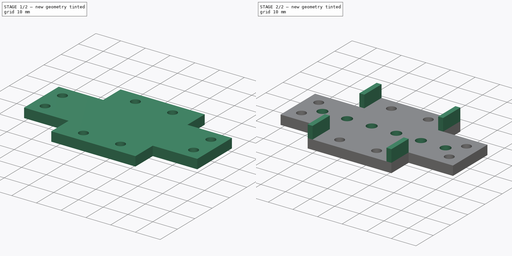
[diagram: build sequence overview — one tinted view per stage of 2, left to right]
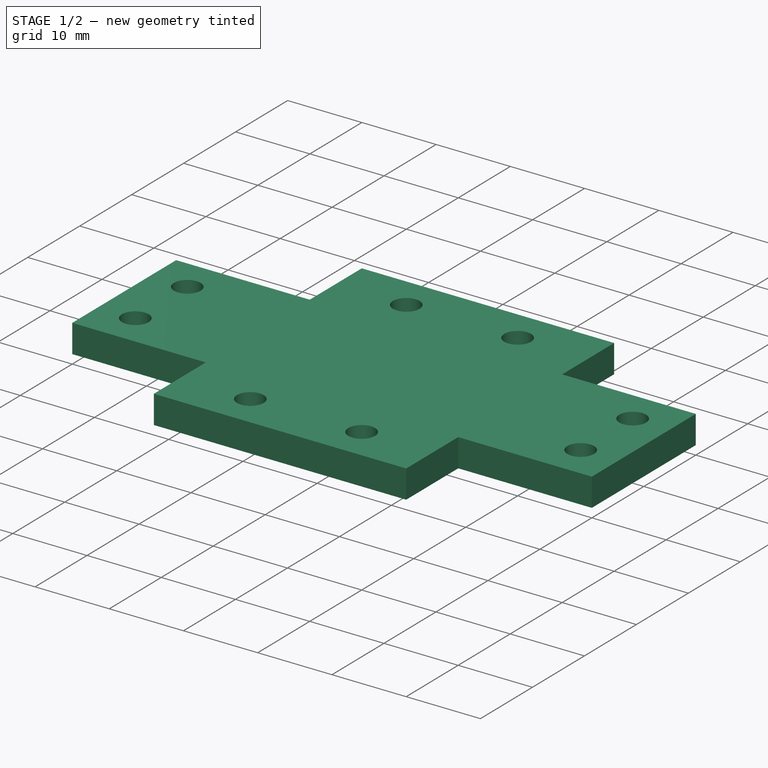
[diagram: stage 1 of 2 — iso view after this stage's code; geometry added in this stage tinted green]
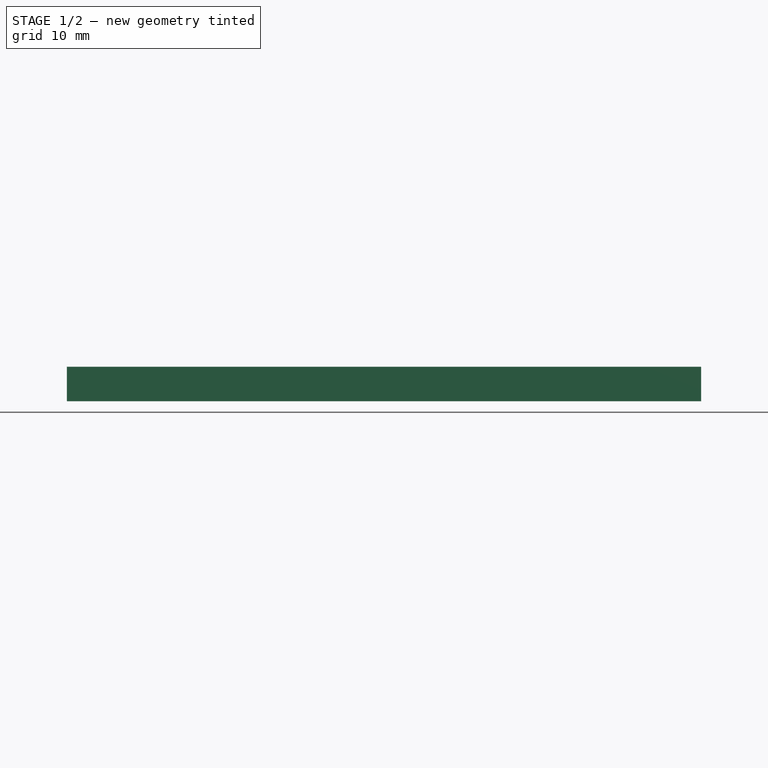
[diagram: stage 1 of 2 — front view after this stage's code; geometry added in this stage tinted green]
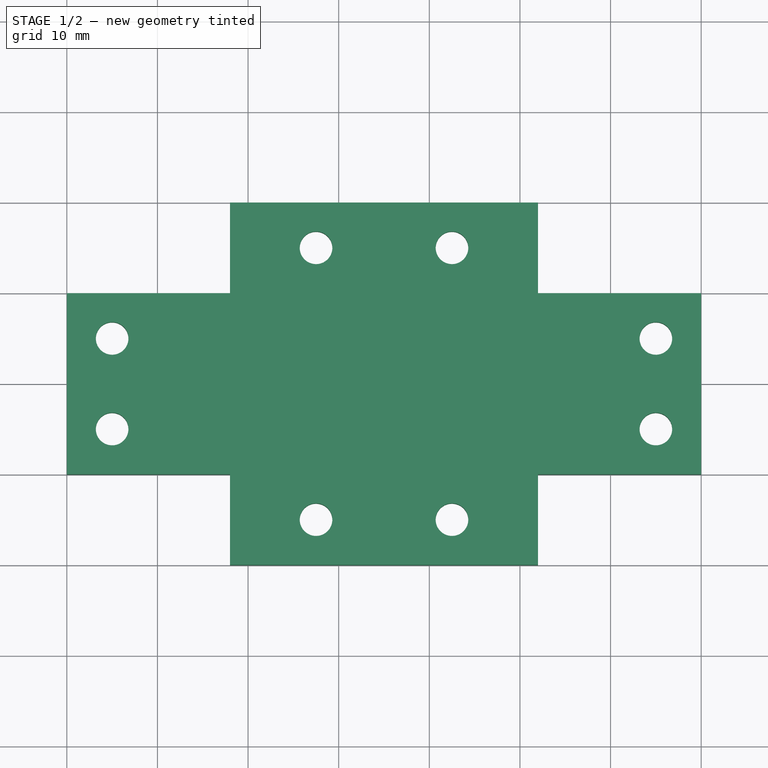
[diagram: stage 1 of 2 — top view after this stage's code; geometry added in this stage tinted green]
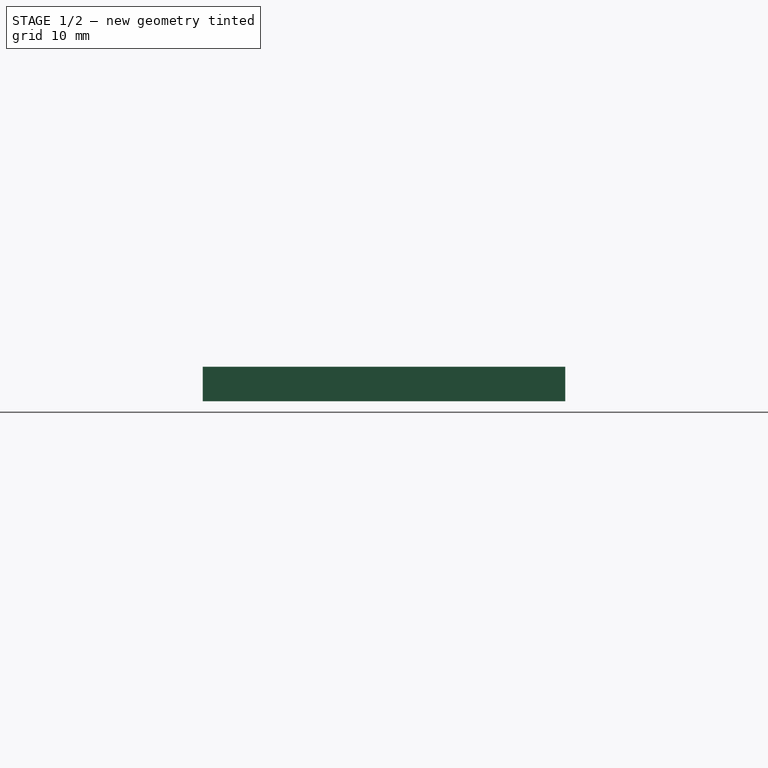
[diagram: stage 1 of 2 — right view after this stage's code; geometry added in this stage tinted green]
FCSTD DOCUMENT
Label: DeltaArmJig1515Mount
objects: Sketcher::SketchObject×4, PartDesign::Pad×2, PartDesign::Pocket×2
note: 10 computed .brp shape members not serialized (recipe doc carries the construction recipe); baked Part::Feature solids carry a one-line shape summary decoded from their .brp

FEATURE [Sketcher::SketchObject] Sketch
  sketch-geometry (26):
    g0: LineSegment StartX=0 StartY=0 StartZ=0 EndX=0 EndY=20 EndZ=0
    g1: LineSegment StartX=0 StartY=20 StartZ=0 EndX=18 EndY=20 EndZ=0
    g2: LineSegment StartX=18 StartY=20 StartZ=0 EndX=18 EndY=30 EndZ=0
    g3: LineSegment StartX=18 StartY=30 StartZ=0 EndX=52 EndY=30 EndZ=0
    g4: LineSegment StartX=52 StartY=30 StartZ=0 EndX=52 EndY=20 EndZ=0
    g5: LineSegment StartX=52 StartY=20 StartZ=0 EndX=70 EndY=20 EndZ=0
    g6: LineSegment StartX=70 StartY=20 StartZ=0 EndX=70 EndY=0 EndZ=0
    g7: LineSegment StartX=70 StartY=0 StartZ=0 EndX=52 EndY=0 EndZ=0
    g8: LineSegment StartX=52 StartY=0 StartZ=0 EndX=52 EndY=-10 EndZ=0
    g9: LineSegment StartX=52 StartY=-10 StartZ=0 EndX=18 EndY=-10 EndZ=0
    g10: LineSegment StartX=18 StartY=-10 StartZ=0 EndX=18 EndY=0 EndZ=0
    g11: LineSegment StartX=18 StartY=0 StartZ=0 EndX=0 EndY=0 EndZ=0
    g12: LineSegment [constr] StartX=18 StartY=20 StartZ=0 EndX=52 EndY=20 EndZ=0
    g13: LineSegment [constr] StartX=52 StartY=20 StartZ=0 EndX=52 EndY=0 EndZ=0
    g14: LineSegment [constr] StartX=52 StartY=0 StartZ=0 EndX=18 EndY=0 EndZ=0
    g15: LineSegment [constr] StartX=18 StartY=0 StartZ=0 EndX=18 EndY=20 EndZ=0
    g16: Circle CenterX=27.5 CenterY=25 CenterZ=0 NormalX=0 NormalY=0 NormalZ=1 Radius=1.8
    g17: Circle CenterX=42.5 CenterY=25 CenterZ=0 NormalX=0 NormalY=0 NormalZ=1 Radius=1.8
    g18: Circle CenterX=27.5 CenterY=-5 CenterZ=0 NormalX=0 NormalY=0 NormalZ=1 Radius=1.8
    g19: Circle CenterX=42.5 CenterY=-5 CenterZ=0 NormalX=0 NormalY=0 NormalZ=1 Radius=1.8
    g20: LineSegment [constr] StartX=27.5 StartY=25 StartZ=0 EndX=42.5 EndY=25 EndZ=0
    g21: LineSegment [constr] StartX=42.5 StartY=25 StartZ=0 EndX=42.5 EndY=-5 EndZ=0
    g22: LineSegment [constr] StartX=42.5 StartY=-5 StartZ=0 EndX=27.5 EndY=-5 EndZ=0
    g23: LineSegment [constr] StartX=27.5 StartY=-5 StartZ=0 EndX=27.5 EndY=25 EndZ=0
    g24: LineSegment [constr] StartX=42.5 StartY=25 StartZ=0 EndX=52 EndY=25 EndZ=0
    g25: LineSegment [constr] StartX=27.5 StartY=25 StartZ=0 EndX=18 EndY=25 EndZ=0
  constraints (70):
    c: Vertical(g0)
    c: Coincident(g0,g1)
    c: Horizontal(g1)
    c: Coincident(g1,g2)
    c: Vertical(g2)
    c: Coincident(g2,g3)
    c: Horizontal(g3)
    c: Coincident(g3,g4)
    c: Vertical(g4)
    c: Coincident(g4,g5)
    c: Horizontal(g5)
    c: Coincident(g5,g6)
    c: Vertical(g6)
    c: Coincident(g6,g7)
    c: Horizontal(g7)
    c: Coincident(g7,g8)
    c: Vertical(g8)
    c: Coincident(g8,g9)
    c: Horizontal(g9)
    c: Coincident(g9,g10)
    c: Vertical(g10)
    c: Coincident(g10,g11)
    c: Coincident(g11,g0)
    c: Horizontal(g11)
    c: Coincident(g12,g13)
    c: Coincident(g13,g14)
    c: Coincident(g14,g15)
    c: Coincident(g15,g12)
    c: Horizontal(g12)
    c: Horizontal(g14)
    c: Vertical(g13)
    c: Vertical(g15)
    c: Coincident(g12,g1)
    c: Coincident(g13,g7)
    c: Coincident(g12,g4)
    c: Coincident(g10,g14)
    c: Equal(g5,g1)
    c: Equal(g4,g8)
    c: DistanceX(g0) = 0
    c: DistanceY(g0) = 0
    c: DistanceX(g2,g3) = 34
    c: Coincident(g20,g21)
    c: Coincident(g21,g22)
    c: Coincident(g22,g23)
    c: Coincident(g23,g20)
    c: Horizontal(g20)
    c: Horizontal(g22)
    c: Vertical(g21)
    c: Vertical(g23)
    c: Coincident(g20,g16)
    c: Coincident(g21,g19)
    c: Coincident(g22,g18)
    c: Coincident(g17,g20)
    c: Coincident(g24,g17)
    c: PointOnObject(g24,g4)
    c: Horizontal(g24)
    c: Coincident(g25,g16)
    c: PointOnObject(g25,g2)
    c: Horizontal(g25)
    c: Equal(g24,g25)
    c: DistanceX(g16,g17) = 15
    c: Equal(g19,g17)
    c: Equal(g17,g16)
    c: Equal(g16,g18)
    c: Radius(g16) = 1.8
    c: DistanceY(g0,g0) = 20
    c: DistanceY(g2,g1) = -10
    c: DistanceY(g25,g2) = 5
    c: DistanceY(g18,g9) = -5
    c: DistanceX(g0,g5) = 70
FEATURE [PartDesign::Pad] Pad
  Length = 3.8
  MirroredExtent = false
  Sketch = -> Sketch
FEATURE [Sketcher::SketchObject] Sketch001
  Placement = pos=(0,0,3.8) rot=(0,0,1;0rad)
  Support = -> Pad [Face18]
  sketch-geometry (8):
    g0: LineSegment [constr] StartX=5 StartY=15 StartZ=0 EndX=65 EndY=15 EndZ=0
    g1: LineSegment [constr] StartX=65 StartY=15 StartZ=0 EndX=65 EndY=5 EndZ=0
    g2: LineSegment [constr] StartX=65 StartY=5 StartZ=0 EndX=5 EndY=5 EndZ=0
    g3: LineSegment [constr] StartX=5 StartY=5 StartZ=0 EndX=5 EndY=15 EndZ=0
    g4: Circle CenterX=5 CenterY=15 CenterZ=0 NormalX=0 NormalY=0 NormalZ=1 Radius=1.8
    g5: Circle CenterX=65 CenterY=15 CenterZ=0 NormalX=0 NormalY=0 NormalZ=1 Radius=1.8
    g6: Circle CenterX=65 CenterY=5 CenterZ=0 NormalX=0 NormalY=0 NormalZ=1 Radius=1.8
    g7: Circle CenterX=5 CenterY=5 CenterZ=0 NormalX=0 NormalY=0 NormalZ=1 Radius=1.8
  constraints (20):
    c: Coincident(g0,g1)
    c: Coincident(g1,g2)
    c: Coincident(g2,g3)
    c: Coincident(g3,g0)
    c: Horizontal(g0)
    c: Horizontal(g2)
    c: Vertical(g1)
    c: Vertical(g3)
    c: DistanceX(g2) = 5
    c: DistanceY(g2) = 5
    c: DistanceX(g2,g1) = 60
    c: DistanceY(g0,g2) = -10
    c: Coincident(g4,g0)
    c: Coincident(g5,g0)
    c: Coincident(g6,g1)
    c: Coincident(g7,g2)
    c: Equal(g7,g4)
    c: Equal(g4,g5)
    c: Equal(g5,g6)
    c: Radius(g4) = 1.8
FEATURE [PartDesign::Pocket] Pocket
  Length = 5
  Sketch = -> Sketch001
  Type = 0
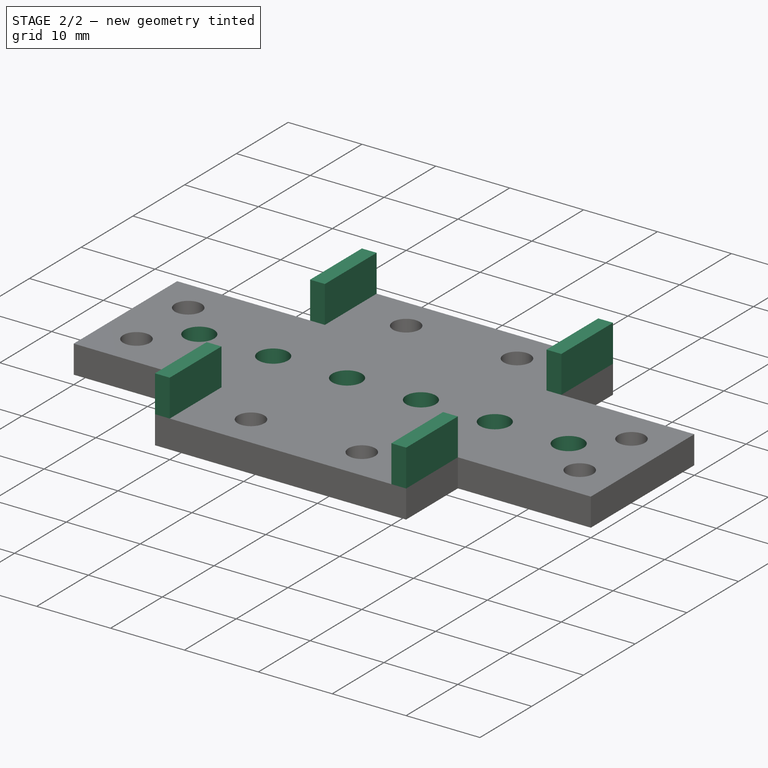
[diagram: stage 2 of 2 — iso view after this stage's code; geometry added in this stage tinted green]
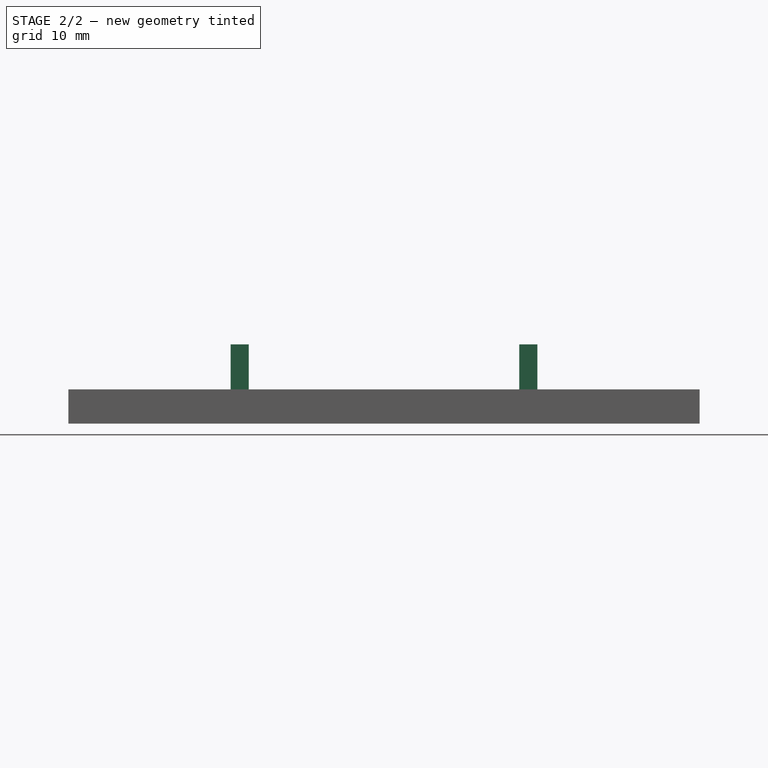
[diagram: stage 2 of 2 — front view after this stage's code; geometry added in this stage tinted green]
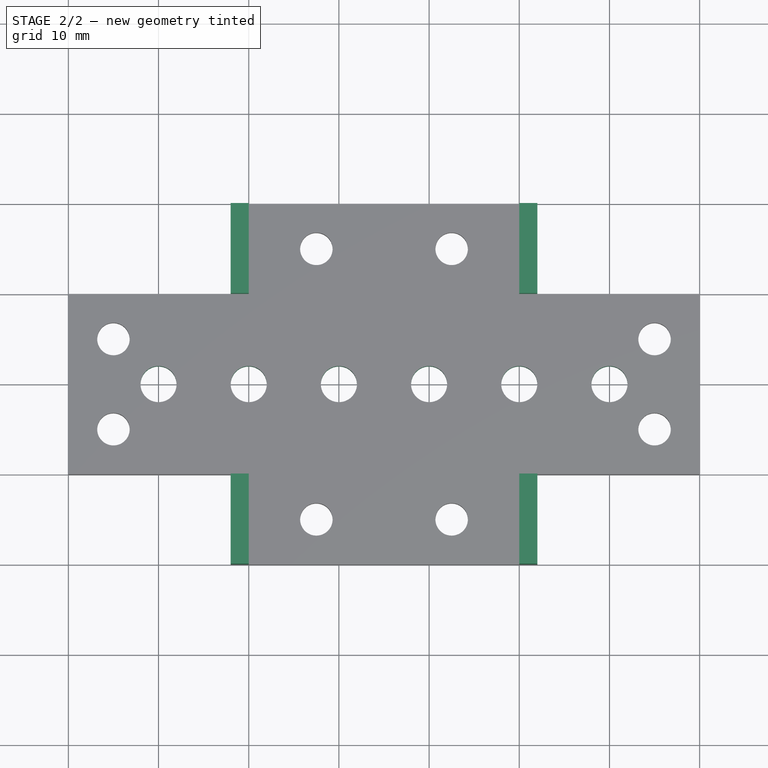
[diagram: stage 2 of 2 — top view after this stage's code; geometry added in this stage tinted green]
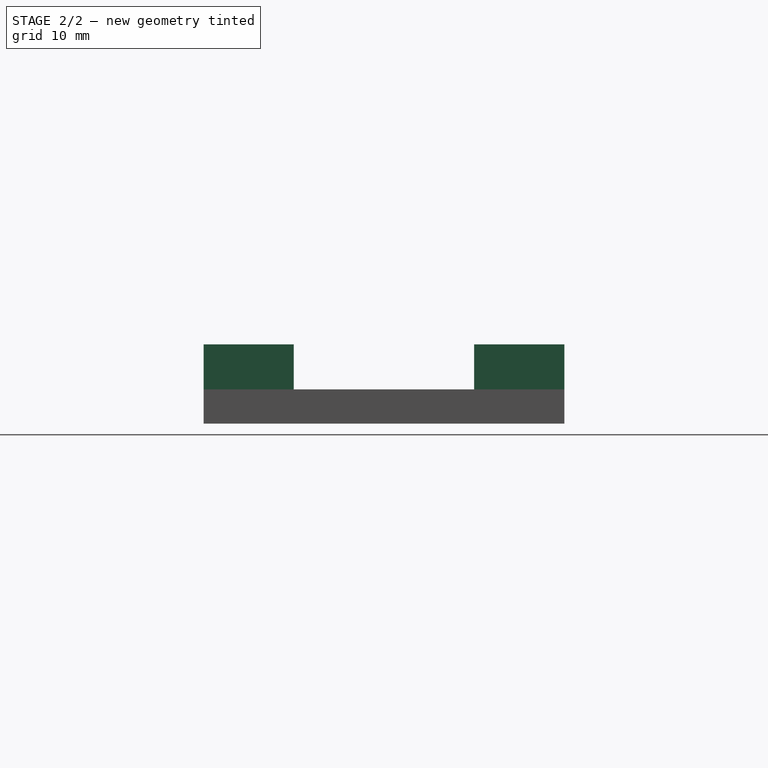
[diagram: stage 2 of 2 — right view after this stage's code; geometry added in this stage tinted green]
FEATURE [Sketcher::SketchObject] Sketch002
  Placement = pos=(0,0,3.8) rot=(0,0,1;0rad)
  Support = -> Pocket [Face5]
  sketch-geometry (26):
    g0: LineSegment StartX=20 StartY=20 StartZ=0 EndX=18 EndY=20 EndZ=0
    g1: LineSegment StartX=18 StartY=20 StartZ=0 EndX=18 EndY=30 EndZ=0
    g2: LineSegment StartX=18 StartY=30 StartZ=0 EndX=20 EndY=30 EndZ=0
    g3: LineSegment StartX=20 StartY=30 StartZ=0 EndX=20 EndY=20 EndZ=0
    g4: LineSegment StartX=50 StartY=20 StartZ=0 EndX=52 EndY=20 EndZ=0
    g5: LineSegment StartX=52 StartY=20 StartZ=0 EndX=52 EndY=30 EndZ=0
    g6: LineSegment StartX=52 StartY=30 StartZ=0 EndX=50 EndY=30 EndZ=0
    g7: LineSegment StartX=50 StartY=30 StartZ=0 EndX=50 EndY=20 EndZ=0
    g8: LineSegment StartX=50 StartY=0 StartZ=0 EndX=52 EndY=0 EndZ=0
    g9: LineSegment StartX=52 StartY=0 StartZ=0 EndX=52 EndY=-10 EndZ=0
    g10: LineSegment StartX=52 StartY=-10 StartZ=0 EndX=50 EndY=-10 EndZ=0
    g11: LineSegment StartX=50 StartY=-10 StartZ=0 EndX=50 EndY=0 EndZ=0
    g12: LineSegment StartX=20 StartY=0 StartZ=0 EndX=18 EndY=0 EndZ=0
    g13: LineSegment StartX=18 StartY=0 StartZ=0 EndX=18 EndY=-10 EndZ=0
    g14: LineSegment StartX=18 StartY=-10 StartZ=0 EndX=20 EndY=-10 EndZ=0
    g15: LineSegment StartX=20 StartY=-10 StartZ=0 EndX=20 EndY=0 EndZ=0
    g16: LineSegment [constr] StartX=20 StartY=20 StartZ=0 EndX=50 EndY=20 EndZ=0
    g17: LineSegment [constr] StartX=50 StartY=20 StartZ=0 EndX=50 EndY=0 EndZ=0
    g18: LineSegment [constr] StartX=50 StartY=0 StartZ=0 EndX=20 EndY=0 EndZ=0
    g19: LineSegment [constr] StartX=20 StartY=0 StartZ=0 EndX=20 EndY=20 EndZ=0
    g20: LineSegment [constr] StartX=20 StartY=30 StartZ=0 EndX=50 EndY=30 EndZ=0
    g21: LineSegment [constr] StartX=52 StartY=20 StartZ=0 EndX=52 EndY=0 EndZ=0
    g22: LineSegment [constr] StartX=18 StartY=20 StartZ=0 EndX=18 EndY=0 EndZ=0
    g23: LineSegment [constr] StartX=20 StartY=-10 StartZ=0 EndX=50 EndY=-10 EndZ=0
    g24: LineSegment [constr] StartX=18 StartY=20 StartZ=0 EndX=0 EndY=20 EndZ=0
    g25: LineSegment [constr] StartX=52 StartY=20 StartZ=0 EndX=70 EndY=20 EndZ=0
  constraints (70):
    c: Coincident(g0,g1)
    c: Coincident(g1,g2)
    c: Coincident(g2,g3)
    c: Coincident(g3,g0)
    c: Horizontal(g0)
    c: Horizontal(g2)
    c: Vertical(g1)
    c: Vertical(g3)
    c: Coincident(g4,g5)
    c: Coincident(g5,g6)
    c: Coincident(g6,g7)
    c: Coincident(g7,g4)
    c: Horizontal(g4)
    c: Horizontal(g6)
    c: Vertical(g5)
    c: Vertical(g7)
    c: Coincident(g8,g9)
    c: Coincident(g9,g10)
    c: Coincident(g10,g11)
    c: Coincident(g11,g8)
    c: Horizontal(g8)
    c: Horizontal(g10)
    c: Vertical(g9)
    c: Vertical(g11)
    c: Coincident(g12,g13)
    c: Coincident(g13,g14)
    c: Coincident(g14,g15)
    c: Coincident(g15,g12)
    c: Horizontal(g12)
    c: Horizontal(g14)
    c: Vertical(g13)
    c: Vertical(g15)
    c: Coincident(g16,g17)
    c: Coincident(g17,g18)
    c: Coincident(g18,g19)
    c: Coincident(g19,g16)
    c: Horizontal(g16)
    c: Horizontal(g18)
    c: Vertical(g17)
    c: Vertical(g19)
    c: Coincident(g16,g0)
    c: Coincident(g17,g8)
    c: Coincident(g16,g4)
    c: Coincident(g12,g18)
    c: Coincident(g20,g2)
    c: Coincident(g20,g6)
    c: Horizontal(g20)
    c: Coincident(g21,g4)
    c: Coincident(g21,g8)
    c: Vertical(g21)
    c: Coincident(g22,g0)
    c: Coincident(g22,g12)
    c: Vertical(g22)
    c: Coincident(g23,g14)
    c: Coincident(g23,g10)
    c: Horizontal(g23)
    c: DistanceY(g1,g13) = -40
    c: DistanceY(g0,g12) = -20
    c: Equal(g1,g13)
    c: DistanceX(g1,g5) = 34
    c: DistanceX(g2,g6) = 30
    c: DistanceY(g12) = 0
    c: Equal(g2,g6)
    c: Coincident(g24,g0)
    c: Horizontal(g24)
    c: Coincident(g25,g4)
    c: Horizontal(g25)
    c: Equal(g25,g24)
    c: DistanceX(g25,g24) = -70
    c: DistanceX(g24) = 0
FEATURE [PartDesign::Pad] Pad001
  Length = 5
  MirroredExtent = false
  Sketch = -> Sketch002
FEATURE [Sketcher::SketchObject] Sketch003
  Placement = pos=(0,0,3.8) rot=(0,0,1;0rad)
  Support = -> Pad001 [Face5]
  sketch-geometry (13):
    g0: LineSegment [constr] StartX=0 StartY=10 StartZ=0 EndX=10 EndY=10 EndZ=0
    g1: LineSegment [constr] StartX=10 StartY=10 StartZ=0 EndX=20 EndY=10 EndZ=0
    g2: LineSegment [constr] StartX=20 StartY=10 StartZ=0 EndX=30 EndY=10 EndZ=0
    g3: LineSegment [constr] StartX=30 StartY=10 StartZ=0 EndX=40 EndY=10 EndZ=0
    g4: LineSegment [constr] StartX=40 StartY=10 StartZ=0 EndX=50 EndY=10 EndZ=0
    g5: LineSegment [constr] StartX=50 StartY=10 StartZ=0 EndX=60 EndY=10 EndZ=0
    g6: LineSegment [constr] StartX=60 StartY=10 StartZ=0 EndX=70 EndY=10 EndZ=0
    g7: Circle CenterX=10 CenterY=10 CenterZ=0 NormalX=0 NormalY=0 NormalZ=1 Radius=2
    g8: Circle CenterX=20 CenterY=10 CenterZ=0 NormalX=0 NormalY=0 NormalZ=1 Radius=2
    g9: Circle CenterX=30 CenterY=10 CenterZ=0 NormalX=0 NormalY=0 NormalZ=1 Radius=2
    g10: Circle CenterX=40 CenterY=10 CenterZ=0 NormalX=0 NormalY=0 NormalZ=1 Radius=2
    g11: Circle CenterX=50 CenterY=10 CenterZ=0 NormalX=0 NormalY=0 NormalZ=1 Radius=2
    g12: Circle CenterX=60 CenterY=10 CenterZ=0 NormalX=0 NormalY=0 NormalZ=1 Radius=2
  constraints (34):
    c: Horizontal(g0)
    c: Coincident(g0,g1)
    c: Horizontal(g1)
    c: Coincident(g1,g2)
    c: Horizontal(g2)
    c: Coincident(g2,g3)
    c: Horizontal(g3)
    c: Coincident(g3,g4)
    c: Horizontal(g4)
    c: Coincident(g4,g5)
    c: Horizontal(g5)
    c: Coincident(g5,g6)
    c: Horizontal(g6)
    c: Equal(g0,g1)
    c: Equal(g1,g2)
    c: Equal(g2,g3)
    c: Equal(g3,g4)
    c: Equal(g4,g5)
    c: Equal(g5,g6)
    c: DistanceX(g0,g6) = 70
    c: DistanceX(g0) = 0
    c: DistanceY(g0) = 10
    c: Coincident(g7,g0)
    c: Coincident(g8,g1)
    c: Coincident(g9,g2)
    c: Coincident(g10,g3)
    c: Coincident(g11,g4)
    c: Coincident(g12,g5)
    c: Equal(g12,g11)
    c: Equal(g11,g10)
    c: Equal(g10,g9)
    c: Equal(g9,g8)
    c: Equal(g8,g7)
    c: Radius(g7) = 2
FEATURE [PartDesign::Pocket] Pocket001
  Length = 5
  Sketch = -> Sketch003
  Type = 0
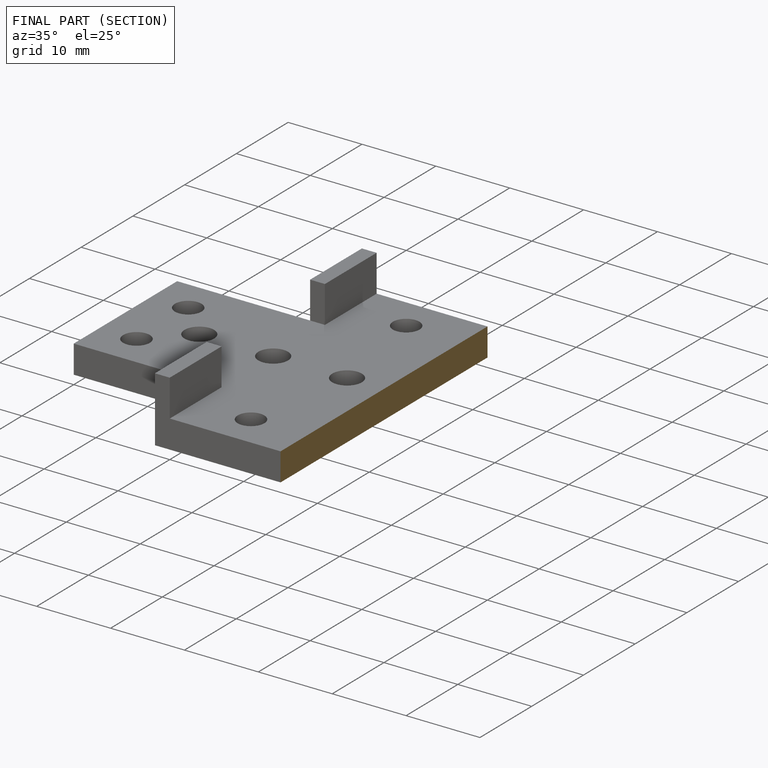
[diagram: finished part — half-section view (interior)]
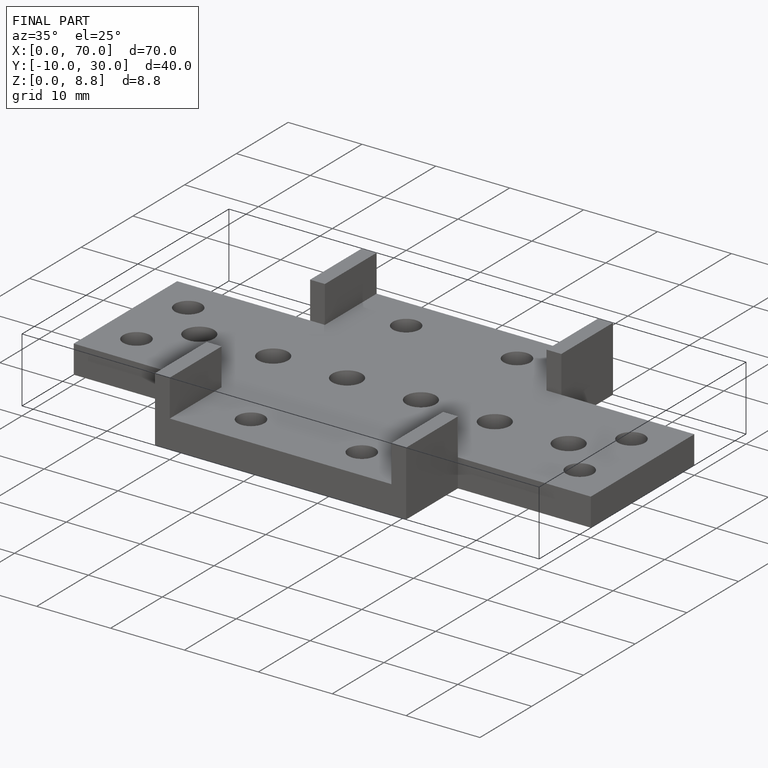
[diagram: finished part — iso view with bounding-box wireframe]
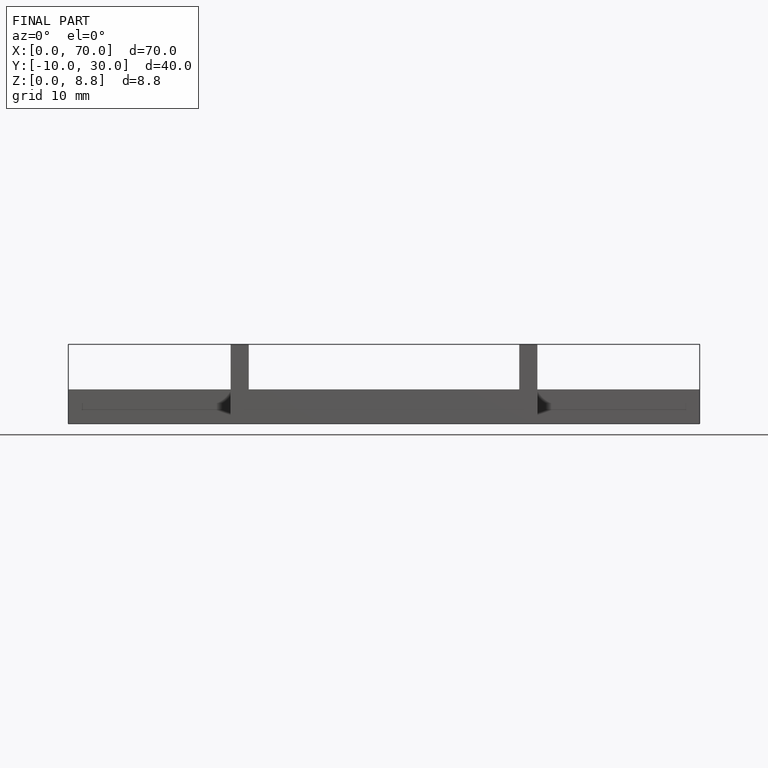
[diagram: finished part — front view with bounding-box wireframe]
